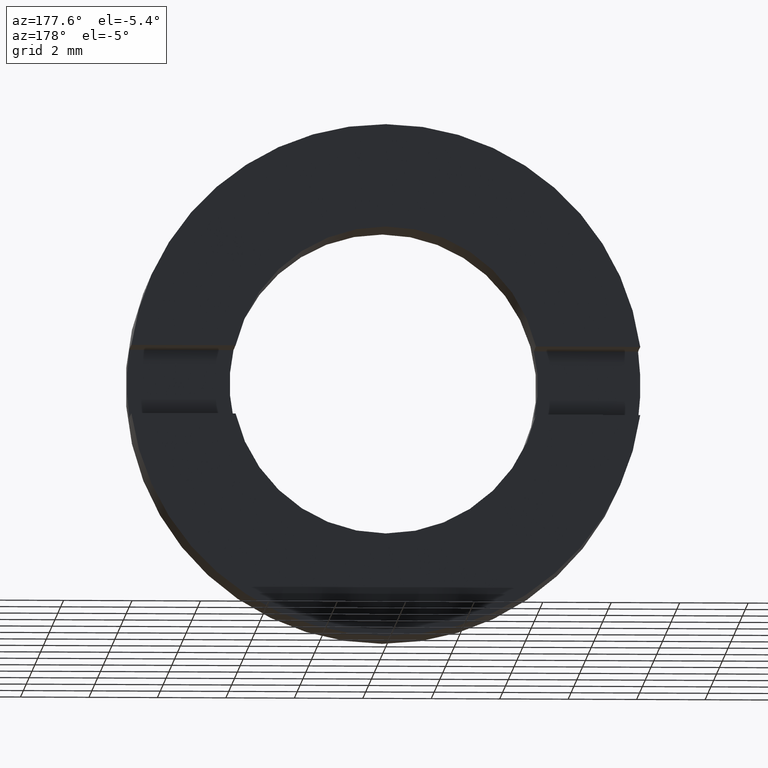
[diagram: clean part render]
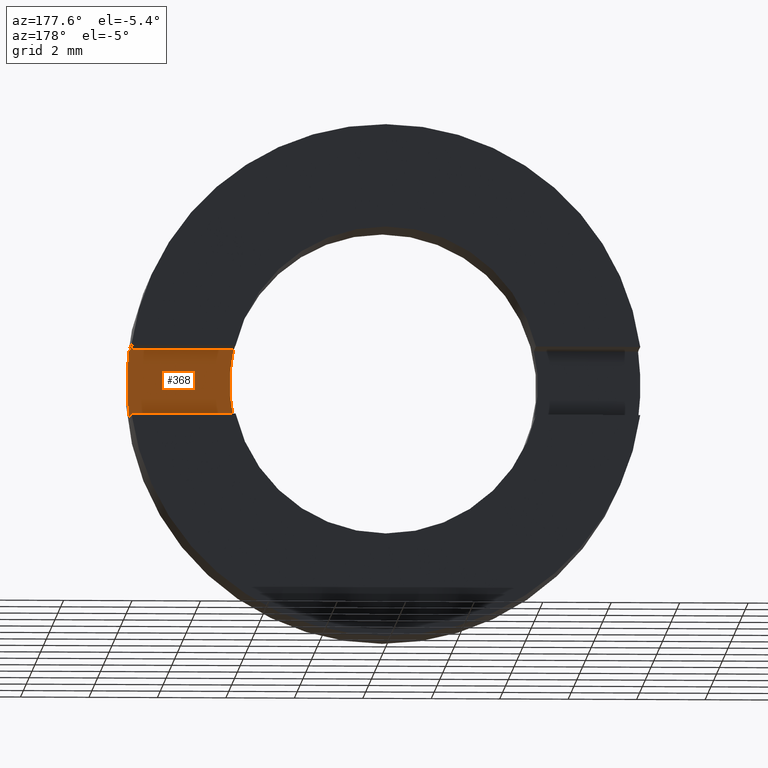
[diagram: same view with one face highlighted and labeled with its STEP entity id]
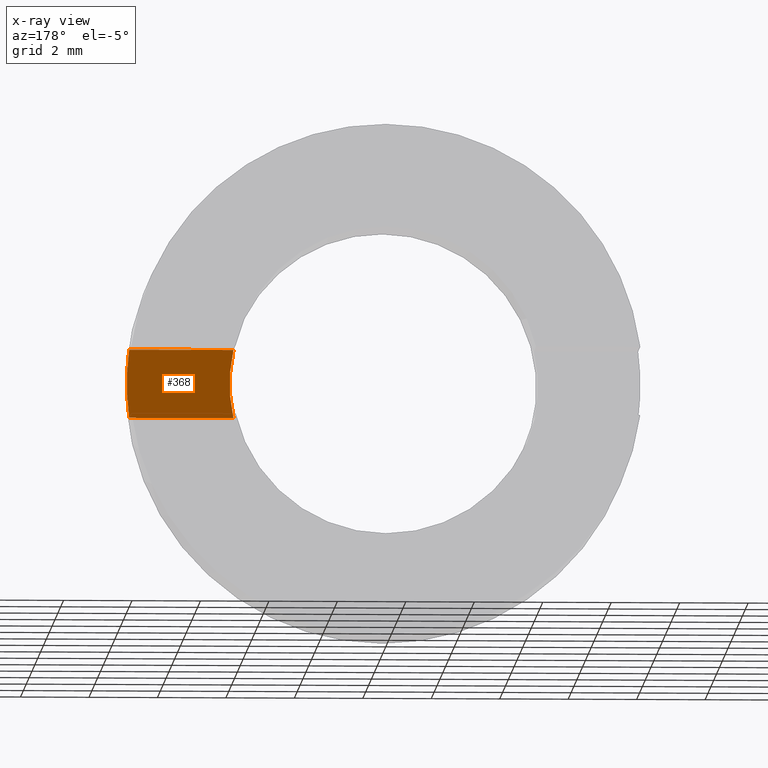
[diagram: x-ray of the same camera — body ghosted, the highlighted face saturated]
A machine part, auxiliary view. The second image highlights one B-rep face of the part: STEP entity #368.
The next image is the same camera in x-ray: the body ghosted, the highlighted face saturated — about 0% of this face is hidden behind the body in this view.
In plain terms, the highlighted planar face has unit normal (0, 1, 0).
Its self-contained STEP definition (entity closure, byte-faithful):
#20 = CARTESIAN_POINT ( 'NONE',  ( 7.433034373659258300, -3.464249787179428400, -0.9999999999999995600 ) ) ;
#22 = CARTESIAN_POINT ( 'NONE',  ( 7.433034373659258300, -3.464249787179428400, 0.9999999999999995600 ) ) ;
#55 = FACE_OUTER_BOUND ( 'NONE', #550, .T. ) ;
#62 = VERTEX_POINT ( 'NONE', #22 ) ;
#70 = AXIS2_PLACEMENT_3D ( 'NONE', #534, #220, #266 ) ;
#87 = DIRECTION ( 'NONE',  ( 1.000000000000000000, 0.0000000000000000000, 0.0000000000000000000 ) ) ;
#106 = CARTESIAN_POINT ( 'NONE',  ( 0.0000000000000000000, -3.464249787179431100, 0.0000000000000000000 ) ) ;
#115 = EDGE_CURVE ( 'NONE', #395, #384, #309, .T. ) ;
#129 = ORIENTED_EDGE ( 'NONE', *, *, #199, .T. ) ;
#143 = CARTESIAN_POINT ( 'NONE',  ( 0.0000000000000000000, -3.464249787179428400, 0.0000000000000000000 ) ) ;
#150 = DIRECTION ( 'NONE',  ( 0.0000000000000000000, 1.000000000000000000, 0.0000000000000000000 ) ) ;
#155 = DIRECTION ( 'NONE',  ( -1.000000000000000000, -0.0000000000000000000, -0.0000000000000000000 ) ) ;
#170 = CARTESIAN_POINT ( 'NONE',  ( -26.85254027261461800, -3.464249787179431100, 1.000000000000000000 ) ) ;
#180 = ORIENTED_EDGE ( 'NONE', *, *, #115, .T. ) ;
#199 = EDGE_CURVE ( 'NONE', #384, #62, #448, .T. ) ;
#206 = AXIS2_PLACEMENT_3D ( 'NONE', #106, #150, #288 ) ;
#220 = DIRECTION ( 'NONE',  ( -0.0000000000000000000, -1.000000000000000000, -0.0000000000000000000 ) ) ;
#266 = DIRECTION ( 'NONE',  ( 8.881784197001253900E-015, 0.0000000000000000000, 1.000000000000000000 ) ) ;
#288 = DIRECTION ( 'NONE',  ( 0.0000000000000000000, -0.0000000000000000000, 1.000000000000000000 ) ) ;
#297 = CARTESIAN_POINT ( 'NONE',  ( -26.85254027261461800, -3.464249787179431100, -1.000000000000000000 ) ) ;
#298 = AXIS2_PLACEMENT_3D ( 'NONE', #143, #464, #418 ) ;
#309 = CIRCLE ( 'NONE', #70, 4.500000000000007100 ) ;
#310 = CIRCLE ( 'NONE', #298, 7.500000000000007100 ) ;
#348 = EDGE_CURVE ( 'NONE', #62, #510, #310, .T. ) ;
#367 = CARTESIAN_POINT ( 'NONE',  ( 4.387482193696067500, -3.464249787179428400, 0.9999999999999995600 ) ) ;
#368 = ADVANCED_FACE ( 'NONE', ( #55 ), #556, .T. ) ;
#384 = VERTEX_POINT ( 'NONE', #367 ) ;
#388 = VECTOR ( 'NONE', #155, 1000.000000000000000 ) ;
#395 = VERTEX_POINT ( 'NONE', #411 ) ;
#411 = CARTESIAN_POINT ( 'NONE',  ( 4.387482193696067500, -3.464249787179428400, -0.9999999999999995600 ) ) ;
#418 = DIRECTION ( 'NONE',  ( 0.0000000000000000000, 0.0000000000000000000, 1.000000000000000000 ) ) ;
#448 = LINE ( 'NONE', #170, #491 ) ;
#459 = EDGE_CURVE ( 'NONE', #510, #395, #505, .T. ) ;
#460 = ORIENTED_EDGE ( 'NONE', *, *, #459, .T. ) ;
#464 = DIRECTION ( 'NONE',  ( 0.0000000000000000000, 1.000000000000000000, 0.0000000000000000000 ) ) ;
#491 = VECTOR ( 'NONE', #87, 1000.000000000000000 ) ;
#505 = LINE ( 'NONE', #297, #388 ) ;
#510 = VERTEX_POINT ( 'NONE', #20 ) ;
#534 = CARTESIAN_POINT ( 'NONE',  ( 0.0000000000000000000, -3.464249787179428400, 0.0000000000000000000 ) ) ;
#550 = EDGE_LOOP ( 'NONE', ( #565, #460, #180, #129 ) ) ;
#556 = PLANE ( 'NONE',  #206 ) ;
#565 = ORIENTED_EDGE ( 'NONE', *, *, #348, .T. ) ;